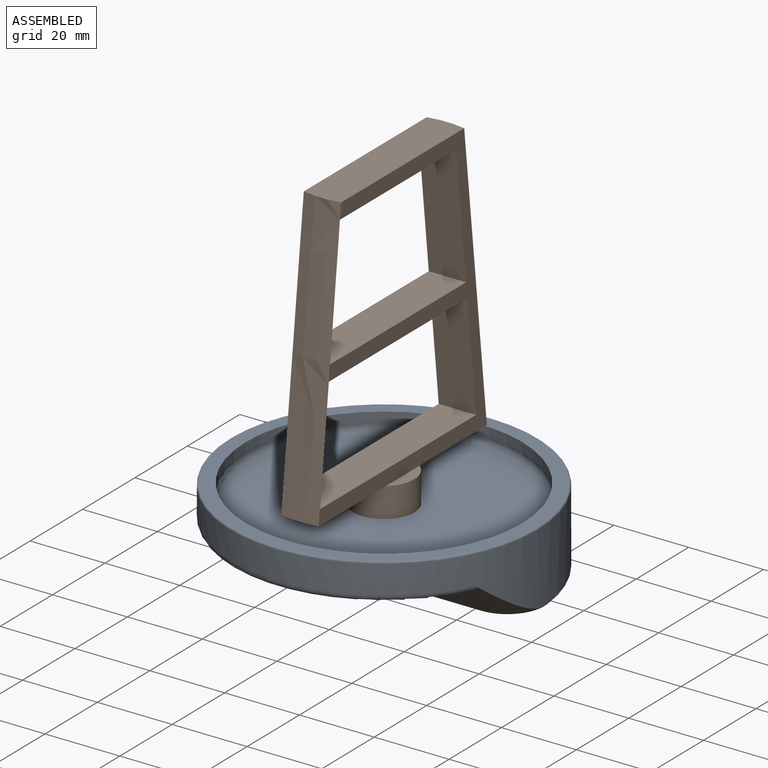
[diagram: assembled view]
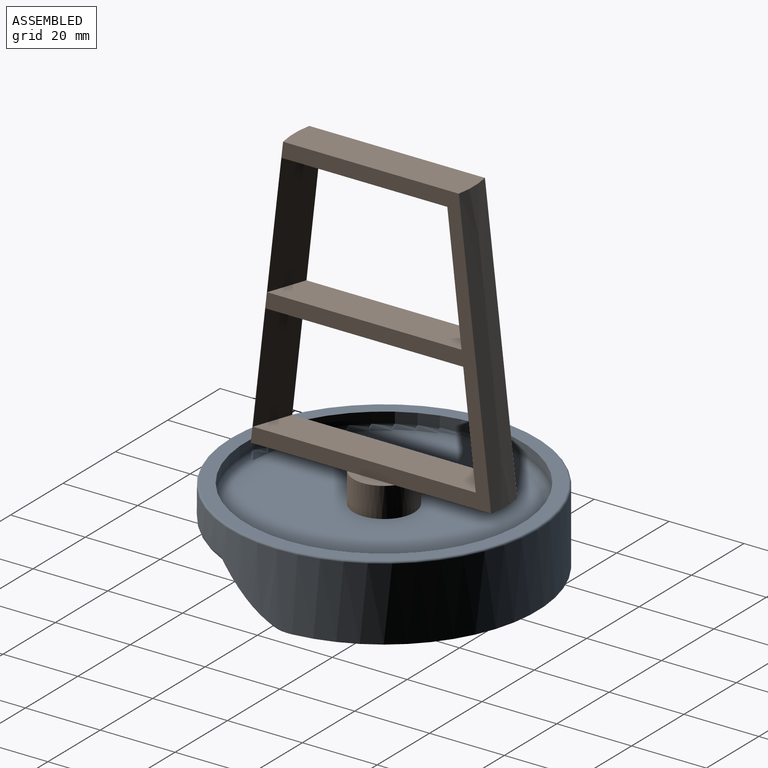
[diagram: assembled view, second angle]
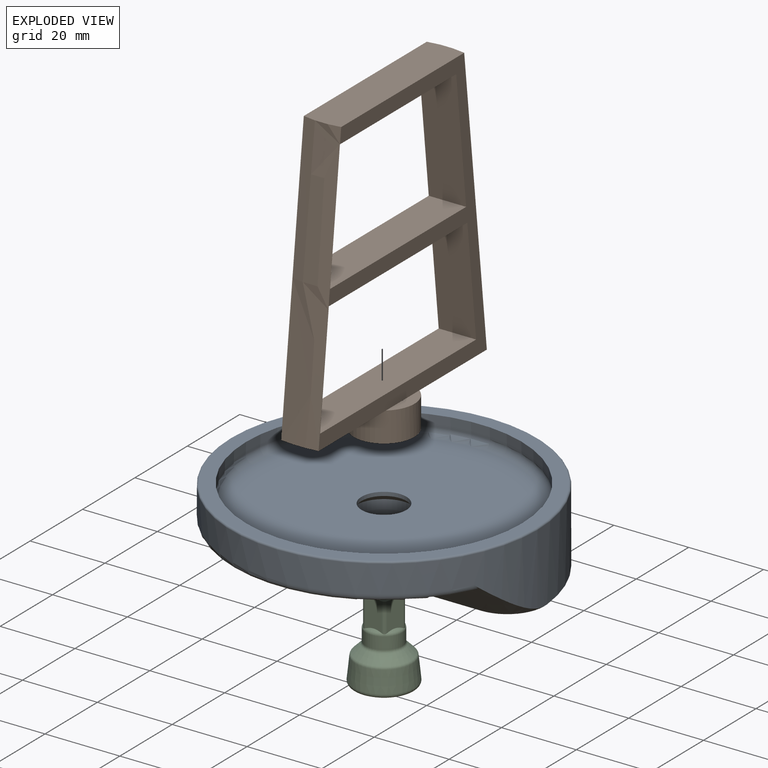
[diagram: exploded view]
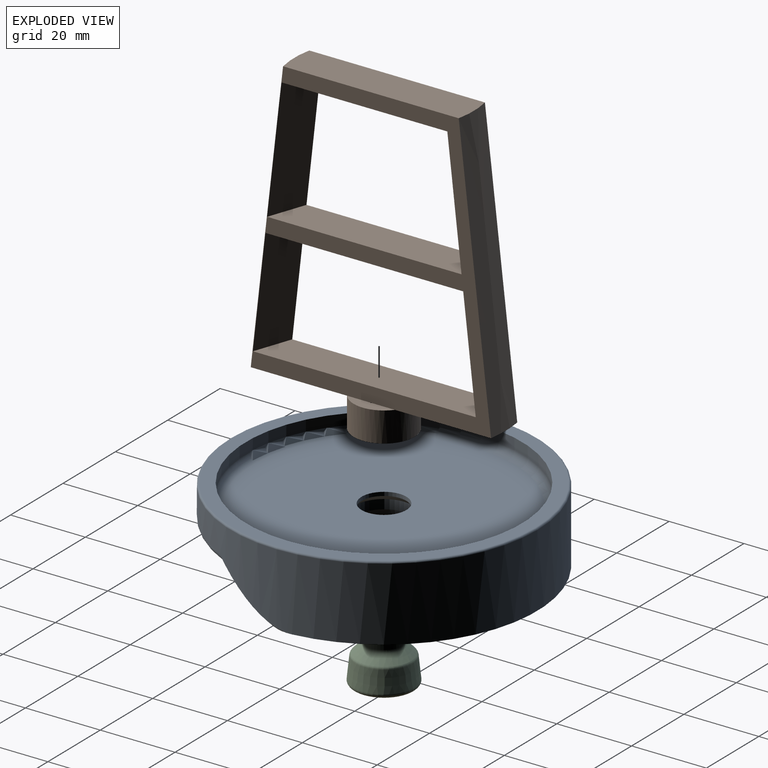
[diagram: exploded view, second angle]
ASSEMBLY  parts=3 mates=2
PART A: 28 faces, bbox 105.7x88.8x20 mm
  f0: plane 70.68x22.51mm, normal (0,0,-1), area 905.1mm2, adj f16,f17,f19,f21,f22,f27
  f1: cone r=37mm half-angle=1.5deg, axis (0,0,-1), area 683.8mm2, adj f4,f6
  f2: plane 69.89x69.89mm, normal (0,0,1), area 3723.7mm2, adj f6,f14
  f3: cylinder r=41mm len=82mm, axis (0,0,1), area 3716.2mm2, adj f5,f7,f16,f22,f27
  f4: plane 81x81mm, normal (0,0,1), area 882.5mm2, adj f1,f5
  f5: torus R=40.5mm, axis (0,0,1), area 201.4mm2, adj f3,f4
  f6: torus R=34.95mm, axis (0,0,-1), area 727.1mm2, adj f1,f2
  f7: plane 81.71x56mm, normal (0,0,-1), area 2944.7mm2, adj f3,f16,f17,f18,f19,f20,f21,f22
  f8: plane 12.25x12.25mm, normal (0,0,-1), area 4.8mm2, adj f14,f26
  f9: cylinder r=7.62mm len=15.25mm, axis (0,0,-1), area 119.8mm2, adj f15,f26
  f10: cone r=0mm half-angle=59deg, axis (0,0,-1), area 8.2mm2, adj f11
  f11: cylinder r=1.5mm len=9mm, axis (0,0,-1), area 84.8mm2, adj f10,f24
  f12: cone r=0mm half-angle=59deg, axis (0,0,-1), area 8.2mm2, adj f13
  f13: cylinder r=1.5mm len=9mm, axis (0,0,-1), area 84.8mm2, adj f12,f25
  f14: cylinder r=6mm len=12mm, axis (0,0,-1), area 37.7mm2, adj f2,f8
  f15: cone r=7.62mm half-angle=11.3deg, axis (0,0,-1), area 503.5mm2, adj f9,f23
  f16: cone r=20mm half-angle=45deg, axis (0,0,1), area 144.7mm2, adj f0,f3,f7,f17,f27
  f17: plane 12.52x10mm, normal (0,-0.71,-0.71), area 177.1mm2, adj f0,f7,f16,f18
  f18: cone r=10mm half-angle=45deg, axis (0,0,-1), area 58.2mm2, adj f7,f17,f19
  f19: cone r=15mm half-angle=45deg, axis (0,0,1), area 465.6mm2, adj f0,f7,f18,f20
  f20: cone r=10mm half-angle=45deg, axis (0,0,-1), area 58.2mm2, adj f7,f19,f21
  f21: plane 12.52x10mm, normal (0,-0.71,-0.71), area 177.1mm2, adj f0,f7,f20,f22
  f22: cone r=20mm half-angle=45deg, axis (0,0,1), area 144.7mm2, adj f0,f3,f7,f21,f27
  f23: torus R=10.44mm, axis (0,0,-1), area 85.1mm2, adj f7,f15
  f24: torus R=2.5mm, axis (0,0,-1), area 18.4mm2, adj f7,f11
  f25: torus R=2.5mm, axis (0,0,-1), area 18.4mm2, adj f7,f13
  f26: cone r=6.12mm half-angle=45deg, axis (0,0,-1), area 91.6mm2, adj f8,f9
  f27: torus R=39mm, axis (0,0,1), area 287.7mm2, adj f0,f3,f16,f22
PART B: 25 faces, bbox 65.2x16.5x83.2 mm
  f0: plane 26.1x10mm, normal (0,0,1), area 247.9mm2, adj f3,f4,f13,f19
  f1: plane 9.75x9.15mm, normal (0,0,1), area 62.4mm2, adj f4,f15,f16,f17,f18,f20
  f2: plane 48x10mm, normal (0,0,-1), area 476.5mm2, adj f3,f4,f12,f13
  f3: plane 75.24x64.47mm, normal (0,-1,0), area 1119.6mm2, adj f0,f2,f5,f6,f7,f8,f9,f10
  f4: plane 75.24x64.47mm, normal (0,1,0), area 897.7mm2, adj f0,f1,f2,f5,f6,f7,f8,f9
  f5: plane 29.5x10mm, normal (-0.99,0,0.11), area 296.9mm2, adj f3,f4,f6,f11
  f6: plane 52.88x10mm, normal (0,0,1), area 511.2mm2, adj f3,f4,f5,f24
  f7: plane 26.1x10mm, normal (0,0,1), area 247.9mm2, adj f3,f4,f12,f19
  f8: plane 51.97x10mm, normal (0,0,-1), area 502.1mm2, adj f3,f4,f9,f23
  f9: plane 33.5x10mm, normal (-0.99,0,0.11), area 337.1mm2, adj f3,f4,f8,f10
  f10: plane 44.37x10mm, normal (0,0,1), area 426.2mm2, adj f3,f4,f9,f13,f23
  f11: plane 59.56x10mm, normal (0,0,-1), area 578mm2, adj f3,f4,f5,f24
  f12: cone r=24mm half-angle=6.5deg, axis (0,0,1), area 770.9mm2, adj f2,f3,f4,f7
  f13: cone r=24mm half-angle=6.5deg, axis (0,0,1), area 758.8mm2, adj f0,f2,f3,f4,f10,f23
  f14: plane 12.81x3.13mm, normal (0,0,-1), area 27.9mm2, adj f3,f19
  f15: plane 8x4.87mm, normal (-0.59,-0.81,0), area 48.2mm2, adj f1,f16,f20,f21,f22
  f16: plane 8x5.73mm, normal (-0.95,0.31,0), area 48.2mm2, adj f1,f15,f17,f21
  f17: plane 8x6.02mm, normal (0,1,0), area 48.2mm2, adj f1,f16,f18,f21
  f18: plane 8x5.73mm, normal (0.95,0.31,0), area 48.2mm2, adj f1,f17,f20,f21
  f19: cylinder r=8.12mm len=16.25mm, axis (0,0,-1), area 408.4mm2, adj f0,f7,f14,f21,f22
  f20: plane 8x4.87mm, normal (0.59,-0.81,0), area 48.2mm2, adj f1,f15,f18,f21,f22
  f21: plane 16.25x16.25mm, normal (0,0,1), area 144.9mm2, adj f15,f16,f17,f18,f19,f20
  f22: plane 12.81x3.13mm, normal (0,0,-1), area 27.9mm2, adj f4,f15,f19,f20
  f23: plane 33.5x10mm, normal (0.94,0.33,0.11), area 357.1mm2, adj f3,f4,f8,f10,f13
  f24: plane 29.5x10mm, normal (0.94,0.33,0.11), area 314.5mm2, adj f3,f4,f6,f11
PART C: 54 faces, bbox 18.1x18.1x22.4 mm
  f0: cone r=4.88mm half-angle=45deg, axis (0,0,-1), area 2.2mm2, adj f6,f39
  f1: cone r=4.88mm half-angle=45deg, axis (0,0,-1), area 2.2mm2, adj f7,f31
  f2: cone r=4.88mm half-angle=45deg, axis (0,0,-1), area 2.2mm2, adj f8,f22
  f3: cone r=4.88mm half-angle=45deg, axis (0,0,-1), area 2.2mm2, adj f9,f28
  f4: cylinder r=4.88mm len=9.75mm, axis (0,0,1), area 101.2mm2, adj f20,f22,f23,f24,f25,f26,f27,f28
  f5: plane 7.74x4.21mm, normal (-0.95,-0.31,0), area 32.6mm2, adj f10,f11,f15,f16,f34,f38
  f6: plane 7.74x4.43mm, normal (0,-1,0), area 32.6mm2, adj f0,f10,f11,f12,f37,f41
  f7: plane 7.74x4.21mm, normal (0.95,-0.31,0), area 32.6mm2, adj f1,f10,f12,f13,f29,f33
  f8: plane 7.74x3.58mm, normal (0.59,0.81,0), area 32.6mm2, adj f2,f10,f13,f14,f23,f24
  f9: plane 7.74x3.58mm, normal (-0.59,0.81,0), area 32.6mm2, adj f3,f10,f14,f15,f27,f30
  f10: plane 9.16x8.81mm, normal (0,0,1), area 58.9mm2, adj f5,f6,f7,f8,f9,f11,f12,f13
  f11: cylinder r=1mm len=7.74mm, axis (0,0,-1), area 9.7mm2, adj f5,f6,f10,f40
  f12: cylinder r=1mm len=7.74mm, axis (0,0,-1), area 9.7mm2, adj f6,f7,f10,f35
  f13: cylinder r=1mm len=7.89mm, axis (0,0,-1), area 9.8mm2, adj f7,f8,f10,f26
  f14: cylinder r=1mm len=7.74mm, axis (0,0,-1), area 9.7mm2, adj f8,f9,f10,f25
  f15: cylinder r=1mm len=7.74mm, axis (0,0,-1), area 9.7mm2, adj f5,f9,f10,f32
  f16: cone r=4.88mm half-angle=45deg, axis (0,0,-1), area 2.2mm2, adj f5,f36
  f17: cone r=6mm half-angle=6deg, axis (0,0,-1), area 286.2mm2, adj f21,f42
  f18: plane 14.4x14.4mm, normal (0,0,-1), area 114.5mm2, adj f42,f50,f51,f52,f53
  f19: cone r=6mm half-angle=45deg, axis (0,0,-1), area 118.5mm2, adj f20,f21
  f20: torus R=5.88mm, axis (0,0,1), area 24.5mm2, adj f4,f19
  f21: torus R=6.6mm, axis (0,0,-1), area 32mm2, adj f17,f19
  f22: torus R=3.88mm, axis (0,0,1), area 3.7mm2, adj f2,f4,f23,f24
  f23: bspline ~0.71x0.3mm, area 0.1mm2, adj f4,f8,f22,f25
  f24: bspline ~0.76x0.49mm, area 0.1mm2, adj f4,f8,f22,f26
  f25: bspline ~1.45x0.73mm, area 0.7mm2, adj f4,f14,f23,f27
  f26: bspline ~1.39x0.72mm, area 0.7mm2, adj f4,f13,f24,f29
  f27: bspline ~0.76x0.5mm, area 0.1mm2, adj f4,f9,f25,f28
  f28: torus R=3.88mm, axis (0,0,1), area 3.7mm2, adj f3,f4,f27,f30
  f29: bspline ~0.71x0.29mm, area 0.1mm2, adj f4,f7,f26,f31
  f30: bspline ~0.71x0.3mm, area 0.1mm2, adj f4,f9,f28,f32
  f31: torus R=3.88mm, axis (0,0,1), area 3.7mm2, adj f1,f4,f29,f33
  f32: bspline ~1.41x0.73mm, area 0.7mm2, adj f4,f15,f30,f34
  f33: bspline ~0.76x0.54mm, area 0.1mm2, adj f4,f7,f31,f35
  f34: bspline ~0.76x0.49mm, area 0.1mm2, adj f4,f5,f32,f36
  f35: bspline ~1.3x1.06mm, area 0.7mm2, adj f4,f12,f33,f37
  f36: torus R=3.88mm, axis (0,0,1), area 3.7mm2, adj f4,f16,f34,f38
  f37: bspline ~0.71x0.26mm, area 0.1mm2, adj f4,f6,f35,f39
  f38: bspline ~0.71x0.28mm, area 0.1mm2, adj f4,f5,f36,f40
  f39: torus R=3.88mm, axis (0,0,1), area 3.7mm2, adj f0,f4,f37,f41
  f40: bspline ~1.3x1.06mm, area 0.7mm2, adj f4,f11,f38,f41
  f41: bspline ~0.76x0.53mm, area 0.1mm2, adj f4,f6,f39,f40
  f42: torus R=7.2mm, axis (0,0,-1), area 82.8mm2, adj f17,f18
  f43: cylinder r=3mm len=13mm, axis (0,0,-1), area 60.7mm2, adj f44,f46,f47,f48,f49,f51
  f44: plane 9x4.47mm, normal (1,0,0), area 40.2mm2, adj f43,f45,f47,f49
  f45: cylinder r=3mm len=13mm, axis (0,0,-1), area 60.7mm2, adj f44,f46,f47,f48,f49,f52
  f46: plane 9x4.47mm, normal (-1,0,0), area 40.2mm2, adj f43,f45,f47,f48
  f47: plane 6x4mm, normal (0,0,-1), area 22.1mm2, adj f43,f44,f45,f46
  f48: plane 4.87x4.54mm, normal (-0.99,0,-0.15), area 15.9mm2, adj f43,f45,f46,f51,f52,f53
  f49: plane 4.87x4.54mm, normal (0.99,0,-0.15), area 15.9mm2, adj f43,f44,f45,f50,f51,f52
  f50: cylinder r=1mm len=3.44mm, axis (0,-1,0), area 4.6mm2, adj f18,f49,f51,f52
  f51: torus R=4mm, axis (0,0,-1), area 11.5mm2, adj f18,f43,f48,f49,f50,f53
  f52: torus R=4mm, axis (0,0,-1), area 11.5mm2, adj f18,f45,f48,f49,f50,f53
  f53: cylinder r=1mm len=3.44mm, axis (0,-1,0), area 4.6mm2, adj f18,f48,f51,f52
PLACE A t=(-51.33,-20.1,14.01)mm
PLACE B rot(axis=(0.71,0.71,0),180deg) t=(-51.33,-20.1,102.01)mm
PLACE C t=(-51.33,-20.1,19.31)mm
MATE fastened B.f19 <-> A.f1  axis (0,0,-1) through (-51.33,-20.1,19.01)mm
MATE revolute C.f0 <-> A.f9  axis (0,0,1) through (-51.33,-20.1,18.01)mm
